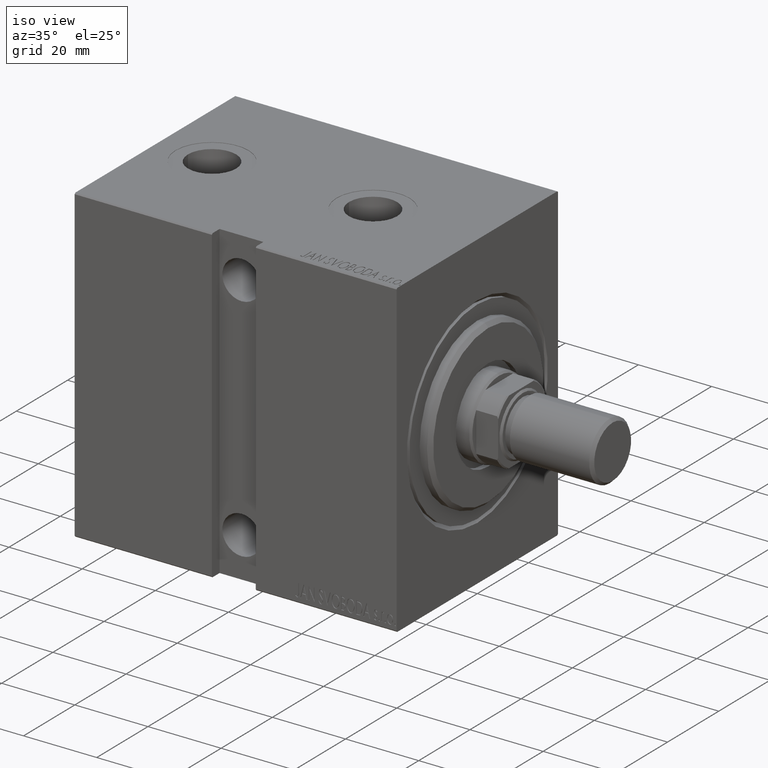
[diagram: clean part render]
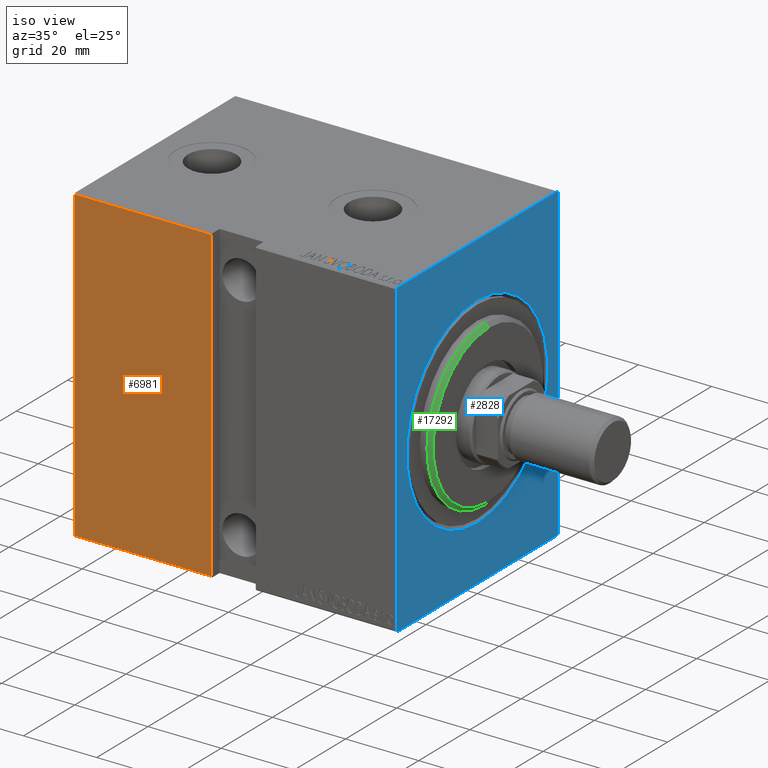
[diagram: same view with three faces highlighted in distinct colors, each labeled with its STEP entity id]
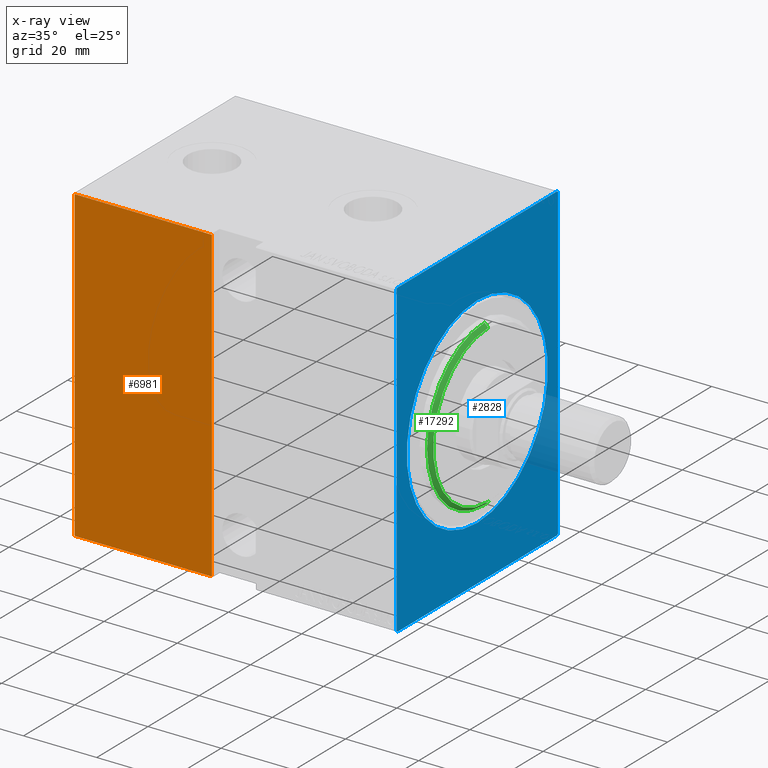
[diagram: x-ray of the same camera — body ghosted, the three highlighted faces saturated]
A machine part, iso view with three faces highlighted in distinct colors.
The next image is the same camera in x-ray (body ghosted, the three faces saturated) — at least one of them is partly hidden behind the body in this view.
Their STEP definitions:

[orange] entity #6981 — the highlighted planar face has unit normal (-0, 1, -0).
#1122 = CARTESIAN_POINT ( 'NONE',  ( 88.00000000000000000, 31.50000000000001421, -42.20000000000000284 ) ) ;
#1154 = DIRECTION ( 'NONE',  ( 0.000000000000000000, 1.632680918566406300E-16, -1.000000000000000000 ) ) ;
#1172 = CARTESIAN_POINT ( 'NONE',  ( 50.49999999999999289, 31.50000000000000711, -42.20000000000000284 ) ) ;
#1366 = DIRECTION ( 'NONE',  ( 0.000000000000000000, -1.000000000000000000, -1.632680918566406300E-16 ) ) ;
#1638 = CARTESIAN_POINT ( 'NONE',  ( 50.50000000000000711, 31.50000000000000711, 42.20000000000001705 ) ) ;
#3863 = EDGE_CURVE ( 'NONE', #39976, #23933, #21215, .T. ) ;
#4979 = CARTESIAN_POINT ( 'NONE',  ( 88.00000000000000000, 31.50000000000001421, -42.50000000000000711 ) ) ;
#5161 = VECTOR ( 'NONE', #24299, 1000.000000000000000 ) ;
#5939 = EDGE_CURVE ( 'NONE', #40961, #23933, #34042, .T. ) ;
#6981 = ADVANCED_FACE ( 'NONE', ( #28547 ), #17820, .F. ) ;
#7069 = CARTESIAN_POINT ( 'NONE',  ( 88.00000000000000000, 31.50000000000000000, 42.20000000000001705 ) ) ;
#7850 = VECTOR ( 'NONE', #32198, 1000.000000000000000 ) ;
#7986 = VECTOR ( 'NONE', #30099, 1000.000000000000000 ) ;
#10876 = CARTESIAN_POINT ( 'NONE',  ( 88.00000000000000000, 31.50000000000000000, 42.20000000000001705 ) ) ;
#14607 = CARTESIAN_POINT ( 'NONE',  ( 50.49999999999999289, 31.50000000000000711, -42.50000000000000711 ) ) ;
#17100 = ORIENTED_EDGE ( 'NONE', *, *, #37909, .F. ) ;
#17339 = ORIENTED_EDGE ( 'NONE', *, *, #3863, .F. ) ;
#17807 = EDGE_LOOP ( 'NONE', ( #17339, #20902, #17100, #40195 ) ) ;
#17820 = PLANE ( 'NONE',  #26238 ) ;
#18816 = CARTESIAN_POINT ( 'NONE',  ( 88.00000000000000000, 31.50000000000001421, -42.20000000000000284 ) ) ;
#20197 = EDGE_CURVE ( 'NONE', #39976, #39024, #29125, .T. ) ;
#20902 = ORIENTED_EDGE ( 'NONE', *, *, #20197, .T. ) ;
#21215 = LINE ( 'NONE', #4979, #5161 ) ;
#23561 = VECTOR ( 'NONE', #37402, 1000.000000000000000 ) ;
#23933 = VERTEX_POINT ( 'NONE', #10876 ) ;
#24299 = DIRECTION ( 'NONE',  ( 0.000000000000000000, -1.632680918566406300E-16, 1.000000000000000000 ) ) ;
#24821 = CARTESIAN_POINT ( 'NONE',  ( 88.00000000000000000, 31.50000000000001421, -42.50000000000000711 ) ) ;
#26238 = AXIS2_PLACEMENT_3D ( 'NONE', #24821, #1366, #1154 ) ;
#28547 = FACE_OUTER_BOUND ( 'NONE', #17807, .T. ) ;
#29125 = LINE ( 'NONE', #18816, #7850 ) ;
#30099 = DIRECTION ( 'NONE',  ( 1.000000000000000000, 0.000000000000000000, 0.000000000000000000 ) ) ;
#32198 = DIRECTION ( 'NONE',  ( -1.000000000000000000, 0.000000000000000000, 0.000000000000000000 ) ) ;
#34042 = LINE ( 'NONE', #7069, #7986 ) ;
#37402 = DIRECTION ( 'NONE',  ( -1.632680918566407286E-16, -0.000000000000000000, -1.000000000000000000 ) ) ;
#37909 = EDGE_CURVE ( 'NONE', #40961, #39024, #38046, .T. ) ;
#38046 = LINE ( 'NONE', #14607, #23561 ) ;
#39024 = VERTEX_POINT ( 'NONE', #1172 ) ;
#39976 = VERTEX_POINT ( 'NONE', #1122 ) ;
#40195 = ORIENTED_EDGE ( 'NONE', *, *, #5939, .T. ) ;
#40961 = VERTEX_POINT ( 'NONE', #1638 ) ;

[blue] entity #2828 — the highlighted planar face has unit normal (-1, 0, 0).
#715 = VERTEX_POINT ( 'NONE', #6954 ) ;
#1740 = PLANE ( 'NONE',  #12847 ) ;
#1868 = CARTESIAN_POINT ( 'NONE',  ( 0.000000000000000000, 3.367778697655221307E-15, -27.49999999999999645 ) ) ;
#2067 = VERTEX_POINT ( 'NONE', #3020 ) ;
#2828 = ADVANCED_FACE ( 'NONE', ( #25422, #8979 ), #1740, .F. ) ;
#3020 = CARTESIAN_POINT ( 'NONE',  ( 0.000000000000000000, 31.50000000000001421, -42.20000000000000284 ) ) ;
#3388 = DIRECTION ( 'NONE',  ( 1.000000000000000000, 0.000000000000000000, 0.000000000000000000 ) ) ;
#3519 = CARTESIAN_POINT ( 'NONE',  ( 0.000000000000000000, 31.20000000000001350, -42.50000000000000711 ) ) ;
#4031 = CARTESIAN_POINT ( 'NONE',  ( 0.000000000000000000, 0.000000000000000000, 27.49999999999999645 ) ) ;
#5925 = LINE ( 'NONE', #31598, #30295 ) ;
#6727 = VECTOR ( 'NONE', #39878, 1000.000000000000000 ) ;
#6954 = CARTESIAN_POINT ( 'NONE',  ( 0.000000000000000000, -31.19999999999997797, 42.49999999999998579 ) ) ;
#7236 = ORIENTED_EDGE ( 'NONE', *, *, #11443, .F. ) ;
#7566 = VERTEX_POINT ( 'NONE', #35402 ) ;
#8567 = ORIENTED_EDGE ( 'NONE', *, *, #21041, .T. ) ;
#8979 = FACE_OUTER_BOUND ( 'NONE', #26717, .T. ) ;
#9114 = CARTESIAN_POINT ( 'NONE',  ( 0.000000000000000000, 31.19999999999999218, 42.50000000000000000 ) ) ;
#9870 = VECTOR ( 'NONE', #37152, 1000.000000000000000 ) ;
#10048 = EDGE_CURVE ( 'NONE', #7566, #23421, #15700, .T. ) ;
#11443 = EDGE_CURVE ( 'NONE', #22441, #13132, #38775, .T. ) ;
#12847 = AXIS2_PLACEMENT_3D ( 'NONE', #25859, #39454, #32435 ) ;
#13132 = VERTEX_POINT ( 'NONE', #18722 ) ;
#14193 = EDGE_LOOP ( 'NONE', ( #22324, #8567 ) ) ;
#14438 = EDGE_CURVE ( 'NONE', #22441, #715, #16252, .T. ) ;
#14573 = VECTOR ( 'NONE', #37628, 1000.000000000000000 ) ;
#15700 = LINE ( 'NONE', #9114, #17226 ) ;
#15886 = DIRECTION ( 'NONE',  ( 0.000000000000000000, -1.632680918566406300E-16, 1.000000000000000000 ) ) ;
#15949 = ORIENTED_EDGE ( 'NONE', *, *, #10048, .T. ) ;
#16252 = LINE ( 'NONE', #19968, #32703 ) ;
#16686 = EDGE_CURVE ( 'NONE', #2067, #30001, #27063, .T. ) ;
#17088 = ORIENTED_EDGE ( 'NONE', *, *, #32205, .T. ) ;
#17226 = VECTOR ( 'NONE', #28639, 1000.000000000000000 ) ;
#17236 = CARTESIAN_POINT ( 'NONE',  ( 0.000000000000000000, 31.50000000000000000, 42.50000000000000000 ) ) ;
#17888 = LINE ( 'NONE', #17236, #14573 ) ;
#18256 = CARTESIAN_POINT ( 'NONE',  ( 0.000000000000000000, -31.19999999999998508, -42.50000000000000711 ) ) ;
#18443 = CARTESIAN_POINT ( 'NONE',  ( 0.000000000000000000, -31.49999999999999289, 42.19999999999996732 ) ) ;
#18685 = CARTESIAN_POINT ( 'NONE',  ( 0.000000000000000000, 31.50000000000000000, 42.20000000000001705 ) ) ;
#18722 = CARTESIAN_POINT ( 'NONE',  ( 0.000000000000000000, -31.49999999999999289, -42.20000000000000995 ) ) ;
#18899 = VERTEX_POINT ( 'NONE', #18256 ) ;
#19968 = CARTESIAN_POINT ( 'NONE',  ( 0.000000000000000000, -31.49999999999999289, 42.19999999999996732 ) ) ;
#21041 = EDGE_CURVE ( 'NONE', #41765, #30628, #40766, .T. ) ;
#21237 = ORIENTED_EDGE ( 'NONE', *, *, #21564, .F. ) ;
#21564 = EDGE_CURVE ( 'NONE', #18899, #30001, #5925, .T. ) ;
#21835 = AXIS2_PLACEMENT_3D ( 'NONE', #40235, #3388, #26428 ) ;
#22324 = ORIENTED_EDGE ( 'NONE', *, *, #35493, .T. ) ;
#22441 = VERTEX_POINT ( 'NONE', #18443 ) ;
#22591 = DIRECTION ( 'NONE',  ( -0.000000000000000000, 0.7071067811865393571, 0.7071067811865556774 ) ) ;
#23421 = VERTEX_POINT ( 'NONE', #18685 ) ;
#23529 = CIRCLE ( 'NONE', #41046, 27.49999999999999645 ) ;
#25422 = FACE_BOUND ( 'NONE', #14193, .T. ) ;
#25749 = LINE ( 'NONE', #29899, #41864 ) ;
#25859 = CARTESIAN_POINT ( 'NONE',  ( 0.000000000000000000, 0.000000000000000000, 0.000000000000000000 ) ) ;
#26058 = CARTESIAN_POINT ( 'NONE',  ( 0.000000000000000000, -31.19999999999998508, -42.50000000000000711 ) ) ;
#26428 = DIRECTION ( 'NONE',  ( 0.000000000000000000, 0.000000000000000000, -1.000000000000000000 ) ) ;
#26484 = DIRECTION ( 'NONE',  ( 0.000000000000000000, 0.000000000000000000, -1.000000000000000000 ) ) ;
#26537 = DIRECTION ( 'NONE',  ( 0.000000000000000000, 1.000000000000000000, 0.000000000000000000 ) ) ;
#26717 = EDGE_LOOP ( 'NONE', ( #40887, #15949, #31236, #29409, #21237, #17088, #7236, #41980 ) ) ;
#27063 = LINE ( 'NONE', #40454, #9870 ) ;
#27334 = CARTESIAN_POINT ( 'NONE',  ( 0.000000000000000000, 0.000000000000000000, 0.000000000000000000 ) ) ;
#28639 = DIRECTION ( 'NONE',  ( -0.000000000000000000, 0.7071067811865721087, -0.7071067811865230368 ) ) ;
#29409 = ORIENTED_EDGE ( 'NONE', *, *, #16686, .T. ) ;
#29543 = CARTESIAN_POINT ( 'NONE',  ( 0.000000000000000000, -31.49999999999999289, 42.49999999999998579 ) ) ;
#29899 = CARTESIAN_POINT ( 'NONE',  ( 0.000000000000000000, 31.50000000000001421, -42.50000000000000711 ) ) ;
#29994 = LINE ( 'NONE', #26058, #6727 ) ;
#30001 = VERTEX_POINT ( 'NONE', #3519 ) ;
#30295 = VECTOR ( 'NONE', #26537, 1000.000000000000000 ) ;
#30628 = VERTEX_POINT ( 'NONE', #4031 ) ;
#30629 = DIRECTION ( 'NONE',  ( 1.000000000000000000, 0.000000000000000000, 0.000000000000000000 ) ) ;
#31236 = ORIENTED_EDGE ( 'NONE', *, *, #40138, .F. ) ;
#31598 = CARTESIAN_POINT ( 'NONE',  ( 0.000000000000000000, -31.49999999999999289, -42.50000000000000711 ) ) ;
#32205 = EDGE_CURVE ( 'NONE', #18899, #13132, #29994, .T. ) ;
#32435 = DIRECTION ( 'NONE',  ( 0.000000000000000000, 0.000000000000000000, -1.000000000000000000 ) ) ;
#32703 = VECTOR ( 'NONE', #22591, 1000.000000000000114 ) ;
#35402 = CARTESIAN_POINT ( 'NONE',  ( 0.000000000000000000, 31.19999999999999218, 42.50000000000000000 ) ) ;
#35493 = EDGE_CURVE ( 'NONE', #30628, #41765, #23529, .T. ) ;
#37152 = DIRECTION ( 'NONE',  ( 0.000000000000000000, -0.7071067811865393571, -0.7071067811865556774 ) ) ;
#37628 = DIRECTION ( 'NONE',  ( 0.000000000000000000, -1.000000000000000000, -2.202823461557850341E-16 ) ) ;
#38775 = LINE ( 'NONE', #29543, #42367 ) ;
#39454 = DIRECTION ( 'NONE',  ( 1.000000000000000000, 0.000000000000000000, 0.000000000000000000 ) ) ;
#39650 = DIRECTION ( 'NONE',  ( 0.000000000000000000, 0.000000000000000000, -1.000000000000000000 ) ) ;
#39878 = DIRECTION ( 'NONE',  ( -0.000000000000000000, -0.7071067811865556774, 0.7071067811865393571 ) ) ;
#40138 = EDGE_CURVE ( 'NONE', #2067, #23421, #25749, .T. ) ;
#40235 = CARTESIAN_POINT ( 'NONE',  ( 0.000000000000000000, 0.000000000000000000, 0.000000000000000000 ) ) ;
#40454 = CARTESIAN_POINT ( 'NONE',  ( 0.000000000000000000, 31.50000000000001421, -42.20000000000000284 ) ) ;
#40766 = CIRCLE ( 'NONE', #21835, 27.49999999999999645 ) ;
#40880 = EDGE_CURVE ( 'NONE', #7566, #715, #17888, .T. ) ;
#40887 = ORIENTED_EDGE ( 'NONE', *, *, #40880, .F. ) ;
#41046 = AXIS2_PLACEMENT_3D ( 'NONE', #27334, #30629, #26484 ) ;
#41765 = VERTEX_POINT ( 'NONE', #1868 ) ;
#41864 = VECTOR ( 'NONE', #15886, 1000.000000000000000 ) ;
#41980 = ORIENTED_EDGE ( 'NONE', *, *, #14438, .T. ) ;
#42367 = VECTOR ( 'NONE', #39650, 1000.000000000000000 ) ;

[green] entity #17292 — the highlighted conical surface has half-angle 45 deg.
#786 = LINE ( 'NONE', #37413, #39358 ) ;
#1486 = CARTESIAN_POINT ( 'NONE',  ( 3.000000000000000000, 2.694222958124177993E-15, -21.50000000000001066 ) ) ;
#2532 = DIRECTION ( 'NONE',  ( -1.000000000000000000, 0.000000000000000000, 0.000000000000000000 ) ) ;
#4271 = EDGE_CURVE ( 'NONE', #11503, #33116, #14260, .T. ) ;
#6773 = ORIENTED_EDGE ( 'NONE', *, *, #34147, .F. ) ;
#8879 = DIRECTION ( 'NONE',  ( -1.000000000000000000, 0.000000000000000000, 0.000000000000000000 ) ) ;
#9109 = DIRECTION ( 'NONE',  ( 0.000000000000000000, 0.000000000000000000, 1.000000000000000000 ) ) ;
#9448 = CARTESIAN_POINT ( 'NONE',  ( 2.000000000000006217, 0.000000000000000000, 22.50000000000000355 ) ) ;
#10856 = ORIENTED_EDGE ( 'NONE', *, *, #4271, .F. ) ;
#11503 = VERTEX_POINT ( 'NONE', #35261 ) ;
#12543 = DIRECTION ( 'NONE',  ( -0.7071067811865487940, 8.659560562354919300E-17, -0.7071067811865463515 ) ) ;
#14260 = CIRCLE ( 'NONE', #40902, 22.50000000000000355 ) ;
#14434 = EDGE_LOOP ( 'NONE', ( #34914, #6773, #23773, #10856 ) ) ;
#15033 = DIRECTION ( 'NONE',  ( 0.000000000000000000, 0.000000000000000000, -1.000000000000000000 ) ) ;
#15137 = DIRECTION ( 'NONE',  ( 1.000000000000000000, -0.000000000000000000, 0.000000000000000000 ) ) ;
#15504 = AXIS2_PLACEMENT_3D ( 'NONE', #18761, #2532, #9109 ) ;
#17292 = ADVANCED_FACE ( 'NONE', ( #39594 ), #35088, .T. ) ;
#17765 = CARTESIAN_POINT ( 'NONE',  ( 3.000000000000000000, 0.000000000000000000, 0.000000000000000000 ) ) ;
#17881 = VECTOR ( 'NONE', #12543, 1000.000000000000000 ) ;
#18477 = EDGE_CURVE ( 'NONE', #39811, #33116, #786, .T. ) ;
#18761 = CARTESIAN_POINT ( 'NONE',  ( 3.000000000000000000, 0.000000000000000000, 0.000000000000000000 ) ) ;
#19177 = CARTESIAN_POINT ( 'NONE',  ( 2.000000000000006217, 0.000000000000000000, 0.000000000000000000 ) ) ;
#19350 = CARTESIAN_POINT ( 'NONE',  ( 3.000000000000000000, 0.000000000000000000, 21.50000000000001066 ) ) ;
#22778 = AXIS2_PLACEMENT_3D ( 'NONE', #17765, #15137, #28499 ) ;
#23773 = ORIENTED_EDGE ( 'NONE', *, *, #18477, .T. ) ;
#24827 = VERTEX_POINT ( 'NONE', #1486 ) ;
#26130 = CARTESIAN_POINT ( 'NONE',  ( 3.000000000000000000, 2.632990618166810813E-15, -21.50000000000001066 ) ) ;
#28499 = DIRECTION ( 'NONE',  ( 0.000000000000000000, 0.000000000000000000, -1.000000000000000000 ) ) ;
#29931 = EDGE_CURVE ( 'NONE', #24827, #11503, #32493, .T. ) ;
#32493 = LINE ( 'NONE', #26130, #17881 ) ;
#33116 = VERTEX_POINT ( 'NONE', #9448 ) ;
#34147 = EDGE_CURVE ( 'NONE', #39811, #24827, #41704, .T. ) ;
#34914 = ORIENTED_EDGE ( 'NONE', *, *, #29931, .F. ) ;
#35088 = CONICAL_SURFACE ( 'NONE', #15504, 21.50000000000001066, 0.7853981633974466137 ) ;
#35261 = CARTESIAN_POINT ( 'NONE',  ( 2.000000000000006217, 2.755455298081545172E-15, -22.50000000000000355 ) ) ;
#37194 = DIRECTION ( 'NONE',  ( -0.7071067811865487940, 0.000000000000000000, 0.7071067811865463515 ) ) ;
#37413 = CARTESIAN_POINT ( 'NONE',  ( 3.000000000000000000, 0.000000000000000000, 21.50000000000001066 ) ) ;
#39358 = VECTOR ( 'NONE', #37194, 1000.000000000000000 ) ;
#39594 = FACE_OUTER_BOUND ( 'NONE', #14434, .T. ) ;
#39811 = VERTEX_POINT ( 'NONE', #19350 ) ;
#40902 = AXIS2_PLACEMENT_3D ( 'NONE', #19177, #8879, #15033 ) ;
#41704 = CIRCLE ( 'NONE', #22778, 21.50000000000001066 ) ;